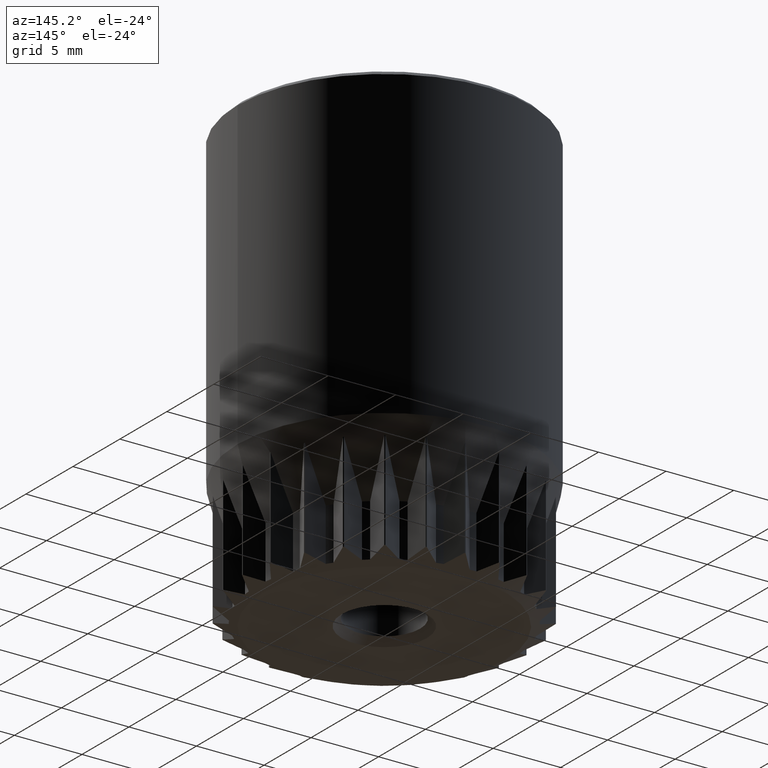
[diagram: clean part render]
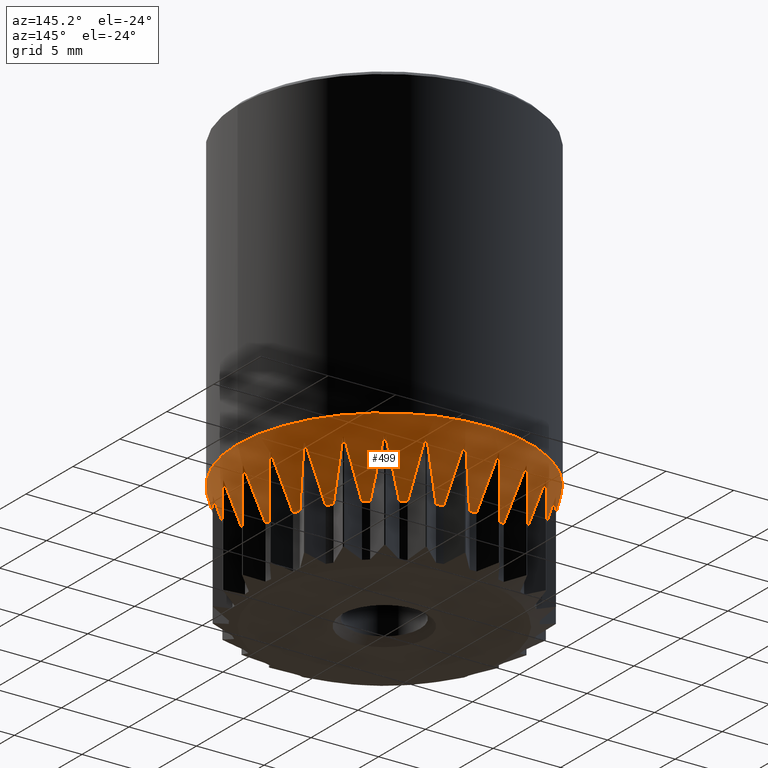
[diagram: same view with one face highlighted and labeled with its STEP entity id]
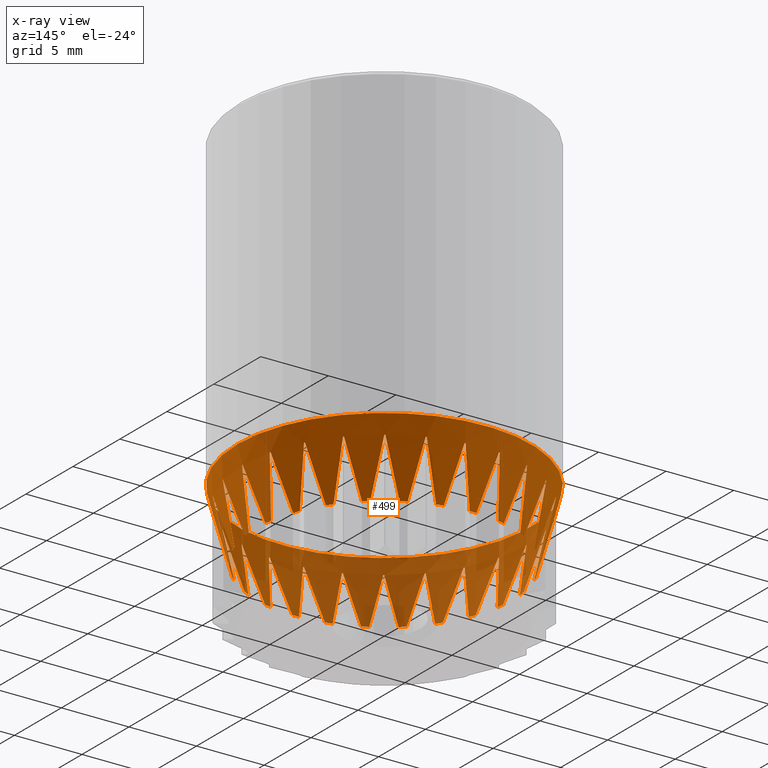
[diagram: x-ray of the same camera — body ghosted, the highlighted face saturated]
A machine part, auxiliary view. The second image highlights one B-rep face of the part: STEP entity #499.
The next image is the same camera in x-ray: the body ghosted, the highlighted face saturated — about 40% of this face is hidden behind the body in this view.
In plain terms, the highlighted conical surface has half-angle 15 deg.
Its self-contained STEP definition (entity closure, byte-faithful):
#97=CONICAL_SURFACE('',#2295,11.0431851652578,15.);
#102=B_SPLINE_CURVE_WITH_KNOTS('',3,(#3221,#3222,#3223,#3224),.UNSPECIFIED.,
.F.,.F.,(4,4),(0.,1.),.UNSPECIFIED.);
#103=B_SPLINE_CURVE_WITH_KNOTS('',3,(#3226,#3227,#3228,#3229),.UNSPECIFIED.,
.F.,.F.,(4,4),(0.,1.),.UNSPECIFIED.);
#104=B_SPLINE_CURVE_WITH_KNOTS('',3,(#3233,#3234,#3235,#3236),.UNSPECIFIED.,
.F.,.F.,(4,4),(0.,1.),.UNSPECIFIED.);
#105=B_SPLINE_CURVE_WITH_KNOTS('',3,(#3237,#3238,#3239,#3240),.UNSPECIFIED.,
.F.,.F.,(4,4),(0.,1.),.UNSPECIFIED.);
#106=B_SPLINE_CURVE_WITH_KNOTS('',3,(#3244,#3245,#3246,#3247),.UNSPECIFIED.,
.F.,.F.,(4,4),(0.,1.),.UNSPECIFIED.);
#107=B_SPLINE_CURVE_WITH_KNOTS('',3,(#3248,#3249,#3250,#3251),.UNSPECIFIED.,
.F.,.F.,(4,4),(0.,1.),.UNSPECIFIED.);
#108=B_SPLINE_CURVE_WITH_KNOTS('',3,(#3255,#3256,#3257,#3258),.UNSPECIFIED.,
.F.,.F.,(4,4),(0.,1.),.UNSPECIFIED.);
#109=B_SPLINE_CURVE_WITH_KNOTS('',3,(#3259,#3260,#3261,#3262),.UNSPECIFIED.,
.F.,.F.,(4,4),(0.,1.),.UNSPECIFIED.);
#110=B_SPLINE_CURVE_WITH_KNOTS('',3,(#3266,#3267,#3268,#3269),.UNSPECIFIED.,
.F.,.F.,(4,4),(0.,1.),.UNSPECIFIED.);
#111=B_SPLINE_CURVE_WITH_KNOTS('',3,(#3270,#3271,#3272,#3273),.UNSPECIFIED.,
.F.,.F.,(4,4),(0.,1.),.UNSPECIFIED.);
#112=B_SPLINE_CURVE_WITH_KNOTS('',3,(#3277,#3278,#3279,#3280),.UNSPECIFIED.,
.F.,.F.,(4,4),(0.,1.),.UNSPECIFIED.);
#113=B_SPLINE_CURVE_WITH_KNOTS('',3,(#3281,#3282,#3283,#3284),.UNSPECIFIED.,
.F.,.F.,(4,4),(0.,1.),.UNSPECIFIED.);
#114=B_SPLINE_CURVE_WITH_KNOTS('',3,(#3288,#3289,#3290,#3291),.UNSPECIFIED.,
.F.,.F.,(4,4),(0.,1.),.UNSPECIFIED.);
#115=B_SPLINE_CURVE_WITH_KNOTS('',3,(#3292,#3293,#3294,#3295),.UNSPECIFIED.,
.F.,.F.,(4,4),(0.,1.),.UNSPECIFIED.);
#116=B_SPLINE_CURVE_WITH_KNOTS('',3,(#3299,#3300,#3301,#3302),.UNSPECIFIED.,
.F.,.F.,(4,4),(0.,1.),.UNSPECIFIED.);
#117=B_SPLINE_CURVE_WITH_KNOTS('',3,(#3303,#3304,#3305,#3306),.UNSPECIFIED.,
.F.,.F.,(4,4),(0.,1.),.UNSPECIFIED.);
#118=B_SPLINE_CURVE_WITH_KNOTS('',3,(#3310,#3311,#3312,#3313),.UNSPECIFIED.,
.F.,.F.,(4,4),(0.,1.),.UNSPECIFIED.);
#119=B_SPLINE_CURVE_WITH_KNOTS('',3,(#3314,#3315,#3316,#3317),.UNSPECIFIED.,
.F.,.F.,(4,4),(0.,1.),.UNSPECIFIED.);
#120=B_SPLINE_CURVE_WITH_KNOTS('',3,(#3321,#3322,#3323,#3324),.UNSPECIFIED.,
.F.,.F.,(4,4),(0.,1.),.UNSPECIFIED.);
#121=B_SPLINE_CURVE_WITH_KNOTS('',3,(#3325,#3326,#3327,#3328),.UNSPECIFIED.,
.F.,.F.,(4,4),(0.,1.),.UNSPECIFIED.);
#122=B_SPLINE_CURVE_WITH_KNOTS('',3,(#3332,#3333,#3334,#3335),.UNSPECIFIED.,
.F.,.F.,(4,4),(0.,1.),.UNSPECIFIED.);
#123=B_SPLINE_CURVE_WITH_KNOTS('',3,(#3336,#3337,#3338,#3339),.UNSPECIFIED.,
.F.,.F.,(4,4),(0.,1.),.UNSPECIFIED.);
#124=B_SPLINE_CURVE_WITH_KNOTS('',3,(#3343,#3344,#3345,#3346),.UNSPECIFIED.,
.F.,.F.,(4,4),(0.,1.),.UNSPECIFIED.);
#125=B_SPLINE_CURVE_WITH_KNOTS('',3,(#3347,#3348,#3349,#3350),.UNSPECIFIED.,
.F.,.F.,(4,4),(0.,1.),.UNSPECIFIED.);
#126=B_SPLINE_CURVE_WITH_KNOTS('',3,(#3354,#3355,#3356,#3357),.UNSPECIFIED.,
.F.,.F.,(4,4),(0.,1.),.UNSPECIFIED.);
#127=B_SPLINE_CURVE_WITH_KNOTS('',3,(#3358,#3359,#3360,#3361),.UNSPECIFIED.,
.F.,.F.,(4,4),(0.,1.),.UNSPECIFIED.);
#128=B_SPLINE_CURVE_WITH_KNOTS('',3,(#3365,#3366,#3367,#3368),.UNSPECIFIED.,
.F.,.F.,(4,4),(0.,1.),.UNSPECIFIED.);
#129=B_SPLINE_CURVE_WITH_KNOTS('',3,(#3369,#3370,#3371,#3372),.UNSPECIFIED.,
.F.,.F.,(4,4),(0.,1.),.UNSPECIFIED.);
#130=B_SPLINE_CURVE_WITH_KNOTS('',3,(#3376,#3377,#3378,#3379),.UNSPECIFIED.,
.F.,.F.,(4,4),(0.,1.),.UNSPECIFIED.);
#131=B_SPLINE_CURVE_WITH_KNOTS('',3,(#3380,#3381,#3382,#3383),.UNSPECIFIED.,
.F.,.F.,(4,4),(0.,1.),.UNSPECIFIED.);
#132=B_SPLINE_CURVE_WITH_KNOTS('',3,(#3387,#3388,#3389,#3390),.UNSPECIFIED.,
.F.,.F.,(4,4),(0.,1.),.UNSPECIFIED.);
#133=B_SPLINE_CURVE_WITH_KNOTS('',3,(#3391,#3392,#3393,#3394),.UNSPECIFIED.,
.F.,.F.,(4,4),(0.,1.),.UNSPECIFIED.);
#134=B_SPLINE_CURVE_WITH_KNOTS('',3,(#3398,#3399,#3400,#3401),.UNSPECIFIED.,
.F.,.F.,(4,4),(0.,1.),.UNSPECIFIED.);
#135=B_SPLINE_CURVE_WITH_KNOTS('',3,(#3402,#3403,#3404,#3405),.UNSPECIFIED.,
.F.,.F.,(4,4),(0.,1.),.UNSPECIFIED.);
#136=B_SPLINE_CURVE_WITH_KNOTS('',3,(#3409,#3410,#3411,#3412),.UNSPECIFIED.,
.F.,.F.,(4,4),(0.,1.),.UNSPECIFIED.);
#137=B_SPLINE_CURVE_WITH_KNOTS('',3,(#3413,#3414,#3415,#3416),.UNSPECIFIED.,
.F.,.F.,(4,4),(0.,1.),.UNSPECIFIED.);
#138=B_SPLINE_CURVE_WITH_KNOTS('',3,(#3420,#3421,#3422,#3423),.UNSPECIFIED.,
.F.,.F.,(4,4),(0.,1.),.UNSPECIFIED.);
#139=B_SPLINE_CURVE_WITH_KNOTS('',3,(#3424,#3425,#3426,#3427),.UNSPECIFIED.,
.F.,.F.,(4,4),(0.,1.),.UNSPECIFIED.);
#140=B_SPLINE_CURVE_WITH_KNOTS('',3,(#3431,#3432,#3433,#3434),.UNSPECIFIED.,
.F.,.F.,(4,4),(0.,1.),.UNSPECIFIED.);
#141=B_SPLINE_CURVE_WITH_KNOTS('',3,(#3435,#3436,#3437,#3438),.UNSPECIFIED.,
.F.,.F.,(4,4),(0.,1.),.UNSPECIFIED.);
#142=B_SPLINE_CURVE_WITH_KNOTS('',3,(#3442,#3443,#3444,#3445),.UNSPECIFIED.,
.F.,.F.,(4,4),(0.,1.),.UNSPECIFIED.);
#143=B_SPLINE_CURVE_WITH_KNOTS('',3,(#3446,#3447,#3448,#3449),.UNSPECIFIED.,
.F.,.F.,(4,4),(0.,1.),.UNSPECIFIED.);
#144=B_SPLINE_CURVE_WITH_KNOTS('',3,(#3453,#3454,#3455,#3456),.UNSPECIFIED.,
.F.,.F.,(4,4),(0.,1.),.UNSPECIFIED.);
#145=B_SPLINE_CURVE_WITH_KNOTS('',3,(#3457,#3458,#3459,#3460),.UNSPECIFIED.,
.F.,.F.,(4,4),(0.,1.),.UNSPECIFIED.);
#146=B_SPLINE_CURVE_WITH_KNOTS('',3,(#3464,#3465,#3466,#3467),.UNSPECIFIED.,
.F.,.F.,(4,4),(0.,1.),.UNSPECIFIED.);
#147=B_SPLINE_CURVE_WITH_KNOTS('',3,(#3468,#3469,#3470,#3471),.UNSPECIFIED.,
.F.,.F.,(4,4),(0.,1.),.UNSPECIFIED.);
#148=B_SPLINE_CURVE_WITH_KNOTS('',3,(#3475,#3476,#3477,#3478),.UNSPECIFIED.,
.F.,.F.,(4,4),(0.,1.),.UNSPECIFIED.);
#149=B_SPLINE_CURVE_WITH_KNOTS('',3,(#3479,#3480,#3481,#3482),.UNSPECIFIED.,
.F.,.F.,(4,4),(0.,1.),.UNSPECIFIED.);
#150=B_SPLINE_CURVE_WITH_KNOTS('',3,(#3486,#3487,#3488,#3489),.UNSPECIFIED.,
.F.,.F.,(4,4),(0.,1.),.UNSPECIFIED.);
#151=B_SPLINE_CURVE_WITH_KNOTS('',3,(#3490,#3491,#3492,#3493),.UNSPECIFIED.,
.F.,.F.,(4,4),(0.,1.),.UNSPECIFIED.);
#152=B_SPLINE_CURVE_WITH_KNOTS('',3,(#3497,#3498,#3499,#3500),.UNSPECIFIED.,
.F.,.F.,(4,4),(0.,1.),.UNSPECIFIED.);
#153=B_SPLINE_CURVE_WITH_KNOTS('',3,(#3501,#3502,#3503,#3504),.UNSPECIFIED.,
.F.,.F.,(4,4),(0.,1.),.UNSPECIFIED.);
#499=ADVANCED_FACE('',(#643,#678),#97,.T.);
#643=FACE_BOUND('',#795,.T.);
#678=FACE_OUTER_BOUND('',#796,.T.);
#795=EDGE_LOOP('',(#997,#998,#999,#1000,#1001,#1002,#1003,#1004,#1005,#1006,
#1007,#1008,#1009,#1010,#1011,#1012,#1013,#1014,#1015,#1016,#1017,#1018,
#1019,#1020,#1021,#1022,#1023,#1024,#1025,#1026,#1027,#1028,#1029,#1030,
#1031,#1032,#1033,#1034,#1035,#1036,#1037,#1038,#1039,#1040,#1041,#1042,
#1043,#1044,#1045,#1046,#1047,#1048,#1049,#1050,#1051,#1052,#1053,#1054,
#1055,#1056,#1057,#1058,#1059,#1060,#1061,#1062,#1063,#1064,#1065,#1066,
#1067,#1068,#1069,#1070,#1071,#1072,#1073,#1074,#1075,#1076,#1077,#1078,
#1079,#1080,#1081,#1082,#1083,#1084,#1085,#1086,#1087,#1088,#1089,#1090,
#1091,#1092,#1093,#1094,#1095,#1096,#1097,#1098,#1099,#1100));
#796=EDGE_LOOP('',(#1101));
#997=ORIENTED_EDGE('',*,*,#1856,.F.);
#998=ORIENTED_EDGE('',*,*,#1751,.F.);
#999=ORIENTED_EDGE('',*,*,#1857,.F.);
#1000=ORIENTED_EDGE('',*,*,#1858,.F.);
#1001=ORIENTED_EDGE('',*,*,#1859,.F.);
#1002=ORIENTED_EDGE('',*,*,#1755,.F.);
#1003=ORIENTED_EDGE('',*,*,#1860,.F.);
#1004=ORIENTED_EDGE('',*,*,#1861,.F.);
#1005=ORIENTED_EDGE('',*,*,#1862,.F.);
#1006=ORIENTED_EDGE('',*,*,#1831,.F.);
#1007=ORIENTED_EDGE('',*,*,#1863,.F.);
#1008=ORIENTED_EDGE('',*,*,#1864,.F.);
#1009=ORIENTED_EDGE('',*,*,#1865,.F.);
#1010=ORIENTED_EDGE('',*,*,#1847,.F.);
#1011=ORIENTED_EDGE('',*,*,#1866,.F.);
#1012=ORIENTED_EDGE('',*,*,#1867,.F.);
#1013=ORIENTED_EDGE('',*,*,#1868,.F.);
#1014=ORIENTED_EDGE('',*,*,#1795,.F.);
#1015=ORIENTED_EDGE('',*,*,#1869,.F.);
#1016=ORIENTED_EDGE('',*,*,#1870,.F.);
#1017=ORIENTED_EDGE('',*,*,#1871,.F.);
#1018=ORIENTED_EDGE('',*,*,#1811,.F.);
#1019=ORIENTED_EDGE('',*,*,#1872,.F.);
#1020=ORIENTED_EDGE('',*,*,#1873,.F.);
#1021=ORIENTED_EDGE('',*,*,#1874,.F.);
#1022=ORIENTED_EDGE('',*,*,#1775,.F.);
#1023=ORIENTED_EDGE('',*,*,#1875,.F.);
#1024=ORIENTED_EDGE('',*,*,#1876,.F.);
#1025=ORIENTED_EDGE('',*,*,#1877,.F.);
#1026=ORIENTED_EDGE('',*,*,#1853,.F.);
#1027=ORIENTED_EDGE('',*,*,#1878,.F.);
#1028=ORIENTED_EDGE('',*,*,#1879,.F.);
#1029=ORIENTED_EDGE('',*,*,#1880,.F.);
#1030=ORIENTED_EDGE('',*,*,#1843,.F.);
#1031=ORIENTED_EDGE('',*,*,#1881,.F.);
#1032=ORIENTED_EDGE('',*,*,#1882,.F.);
#1033=ORIENTED_EDGE('',*,*,#1883,.F.);
#1034=ORIENTED_EDGE('',*,*,#1767,.F.);
#1035=ORIENTED_EDGE('',*,*,#1884,.F.);
#1036=ORIENTED_EDGE('',*,*,#1885,.F.);
#1037=ORIENTED_EDGE('',*,*,#1886,.F.);
#1038=ORIENTED_EDGE('',*,*,#1771,.F.);
#1039=ORIENTED_EDGE('',*,*,#1887,.F.);
#1040=ORIENTED_EDGE('',*,*,#1888,.F.);
#1041=ORIENTED_EDGE('',*,*,#1889,.F.);
#1042=ORIENTED_EDGE('',*,*,#1803,.F.);
#1043=ORIENTED_EDGE('',*,*,#1890,.F.);
#1044=ORIENTED_EDGE('',*,*,#1891,.F.);
#1045=ORIENTED_EDGE('',*,*,#1892,.F.);
#1046=ORIENTED_EDGE('',*,*,#1839,.F.);
#1047=ORIENTED_EDGE('',*,*,#1893,.F.);
#1048=ORIENTED_EDGE('',*,*,#1894,.F.);
#1049=ORIENTED_EDGE('',*,*,#1895,.F.);
#1050=ORIENTED_EDGE('',*,*,#1779,.F.);
#1051=ORIENTED_EDGE('',*,*,#1896,.F.);
#1052=ORIENTED_EDGE('',*,*,#1897,.F.);
#1053=ORIENTED_EDGE('',*,*,#1898,.F.);
#1054=ORIENTED_EDGE('',*,*,#1807,.F.);
#1055=ORIENTED_EDGE('',*,*,#1899,.F.);
#1056=ORIENTED_EDGE('',*,*,#1900,.F.);
#1057=ORIENTED_EDGE('',*,*,#1901,.F.);
#1058=ORIENTED_EDGE('',*,*,#1783,.F.);
#1059=ORIENTED_EDGE('',*,*,#1902,.F.);
#1060=ORIENTED_EDGE('',*,*,#1903,.F.);
#1061=ORIENTED_EDGE('',*,*,#1904,.F.);
#1062=ORIENTED_EDGE('',*,*,#1827,.F.);
#1063=ORIENTED_EDGE('',*,*,#1905,.F.);
#1064=ORIENTED_EDGE('',*,*,#1906,.F.);
#1065=ORIENTED_EDGE('',*,*,#1907,.F.);
#1066=ORIENTED_EDGE('',*,*,#1819,.F.);
#1067=ORIENTED_EDGE('',*,*,#1908,.F.);
#1068=ORIENTED_EDGE('',*,*,#1909,.F.);
#1069=ORIENTED_EDGE('',*,*,#1910,.F.);
#1070=ORIENTED_EDGE('',*,*,#1815,.F.);
#1071=ORIENTED_EDGE('',*,*,#1911,.F.);
#1072=ORIENTED_EDGE('',*,*,#1912,.F.);
#1073=ORIENTED_EDGE('',*,*,#1913,.F.);
#1074=ORIENTED_EDGE('',*,*,#1791,.F.);
#1075=ORIENTED_EDGE('',*,*,#1914,.F.);
#1076=ORIENTED_EDGE('',*,*,#1915,.F.);
#1077=ORIENTED_EDGE('',*,*,#1916,.F.);
#1078=ORIENTED_EDGE('',*,*,#1823,.F.);
#1079=ORIENTED_EDGE('',*,*,#1917,.F.);
#1080=ORIENTED_EDGE('',*,*,#1918,.F.);
#1081=ORIENTED_EDGE('',*,*,#1919,.F.);
#1082=ORIENTED_EDGE('',*,*,#1835,.F.);
#1083=ORIENTED_EDGE('',*,*,#1920,.F.);
#1084=ORIENTED_EDGE('',*,*,#1921,.F.);
#1085=ORIENTED_EDGE('',*,*,#1922,.F.);
#1086=ORIENTED_EDGE('',*,*,#1787,.F.);
#1087=ORIENTED_EDGE('',*,*,#1923,.F.);
#1088=ORIENTED_EDGE('',*,*,#1924,.F.);
#1089=ORIENTED_EDGE('',*,*,#1925,.F.);
#1090=ORIENTED_EDGE('',*,*,#1799,.F.);
#1091=ORIENTED_EDGE('',*,*,#1926,.F.);
#1092=ORIENTED_EDGE('',*,*,#1927,.F.);
#1093=ORIENTED_EDGE('',*,*,#1928,.F.);
#1094=ORIENTED_EDGE('',*,*,#1759,.F.);
#1095=ORIENTED_EDGE('',*,*,#1929,.F.);
#1096=ORIENTED_EDGE('',*,*,#1930,.F.);
#1097=ORIENTED_EDGE('',*,*,#1931,.F.);
#1098=ORIENTED_EDGE('',*,*,#1763,.F.);
#1099=ORIENTED_EDGE('',*,*,#1932,.F.);
#1100=ORIENTED_EDGE('',*,*,#1933,.F.);
#1101=ORIENTED_EDGE('',*,*,#1849,.F.);
#1532=VERTEX_POINT('',#2979);
#1534=VERTEX_POINT('',#2983);
#1536=VERTEX_POINT('',#2988);
#1538=VERTEX_POINT('',#2992);
#1540=VERTEX_POINT('',#2997);
#1542=VERTEX_POINT('',#3001);
#1544=VERTEX_POINT('',#3006);
#1546=VERTEX_POINT('',#3010);
#1548=VERTEX_POINT('',#3015);
#1550=VERTEX_POINT('',#3019);
#1552=VERTEX_POINT('',#3024);
#1554=VERTEX_POINT('',#3028);
#1556=VERTEX_POINT('',#3033);
#1558=VERTEX_POINT('',#3037);
#1560=VERTEX_POINT('',#3042);
#1562=VERTEX_POINT('',#3046);
#1564=VERTEX_POINT('',#3051);
#1566=VERTEX_POINT('',#3055);
#1568=VERTEX_POINT('',#3060);
#1570=VERTEX_POINT('',#3064);
#1572=VERTEX_POINT('',#3069);
#1574=VERTEX_POINT('',#3073);
#1576=VERTEX_POINT('',#3078);
#1578=VERTEX_POINT('',#3082);
#1580=VERTEX_POINT('',#3087);
#1582=VERTEX_POINT('',#3091);
#1584=VERTEX_POINT('',#3096);
#1586=VERTEX_POINT('',#3100);
#1588=VERTEX_POINT('',#3105);
#1590=VERTEX_POINT('',#3109);
#1592=VERTEX_POINT('',#3114);
#1594=VERTEX_POINT('',#3118);
#1596=VERTEX_POINT('',#3123);
#1598=VERTEX_POINT('',#3127);
#1600=VERTEX_POINT('',#3132);
#1602=VERTEX_POINT('',#3136);
#1604=VERTEX_POINT('',#3141);
#1606=VERTEX_POINT('',#3145);
#1608=VERTEX_POINT('',#3150);
#1610=VERTEX_POINT('',#3154);
#1612=VERTEX_POINT('',#3159);
#1614=VERTEX_POINT('',#3163);
#1616=VERTEX_POINT('',#3168);
#1618=VERTEX_POINT('',#3172);
#1620=VERTEX_POINT('',#3177);
#1622=VERTEX_POINT('',#3181);
#1624=VERTEX_POINT('',#3186);
#1626=VERTEX_POINT('',#3190);
#1628=VERTEX_POINT('',#3195);
#1630=VERTEX_POINT('',#3199);
#1632=VERTEX_POINT('',#3205);
#1634=VERTEX_POINT('',#3209);
#1636=VERTEX_POINT('',#3213);
#1639=VERTEX_POINT('',#3225);
#1640=VERTEX_POINT('',#3230);
#1641=VERTEX_POINT('',#3232);
#1642=VERTEX_POINT('',#3241);
#1643=VERTEX_POINT('',#3243);
#1644=VERTEX_POINT('',#3252);
#1645=VERTEX_POINT('',#3254);
#1646=VERTEX_POINT('',#3263);
#1647=VERTEX_POINT('',#3265);
#1648=VERTEX_POINT('',#3274);
#1649=VERTEX_POINT('',#3276);
#1650=VERTEX_POINT('',#3285);
#1651=VERTEX_POINT('',#3287);
#1652=VERTEX_POINT('',#3296);
#1653=VERTEX_POINT('',#3298);
#1654=VERTEX_POINT('',#3307);
#1655=VERTEX_POINT('',#3309);
#1656=VERTEX_POINT('',#3318);
#1657=VERTEX_POINT('',#3320);
#1658=VERTEX_POINT('',#3329);
#1659=VERTEX_POINT('',#3331);
#1660=VERTEX_POINT('',#3340);
#1661=VERTEX_POINT('',#3342);
#1662=VERTEX_POINT('',#3351);
#1663=VERTEX_POINT('',#3353);
#1664=VERTEX_POINT('',#3362);
#1665=VERTEX_POINT('',#3364);
#1666=VERTEX_POINT('',#3373);
#1667=VERTEX_POINT('',#3375);
#1668=VERTEX_POINT('',#3384);
#1669=VERTEX_POINT('',#3386);
#1670=VERTEX_POINT('',#3395);
#1671=VERTEX_POINT('',#3397);
#1672=VERTEX_POINT('',#3406);
#1673=VERTEX_POINT('',#3408);
#1674=VERTEX_POINT('',#3417);
#1675=VERTEX_POINT('',#3419);
#1676=VERTEX_POINT('',#3428);
#1677=VERTEX_POINT('',#3430);
#1678=VERTEX_POINT('',#3439);
#1679=VERTEX_POINT('',#3441);
#1680=VERTEX_POINT('',#3450);
#1681=VERTEX_POINT('',#3452);
#1682=VERTEX_POINT('',#3461);
#1683=VERTEX_POINT('',#3463);
#1684=VERTEX_POINT('',#3472);
#1685=VERTEX_POINT('',#3474);
#1686=VERTEX_POINT('',#3483);
#1687=VERTEX_POINT('',#3485);
#1688=VERTEX_POINT('',#3494);
#1689=VERTEX_POINT('',#3496);
#1690=VERTEX_POINT('',#3505);
#1751=EDGE_CURVE('',#1534,#1532,#2070,.T.);
#1755=EDGE_CURVE('',#1538,#1536,#2072,.T.);
#1759=EDGE_CURVE('',#1542,#1540,#2074,.T.);
#1763=EDGE_CURVE('',#1546,#1544,#2076,.T.);
#1767=EDGE_CURVE('',#1550,#1548,#2078,.T.);
#1771=EDGE_CURVE('',#1554,#1552,#2080,.T.);
#1775=EDGE_CURVE('',#1558,#1556,#2082,.T.);
#1779=EDGE_CURVE('',#1562,#1560,#2084,.T.);
#1783=EDGE_CURVE('',#1566,#1564,#2086,.T.);
#1787=EDGE_CURVE('',#1570,#1568,#2088,.T.);
#1791=EDGE_CURVE('',#1574,#1572,#2090,.T.);
#1795=EDGE_CURVE('',#1578,#1576,#2092,.T.);
#1799=EDGE_CURVE('',#1582,#1580,#2094,.T.);
#1803=EDGE_CURVE('',#1586,#1584,#2096,.T.);
#1807=EDGE_CURVE('',#1590,#1588,#2098,.T.);
#1811=EDGE_CURVE('',#1594,#1592,#2100,.T.);
#1815=EDGE_CURVE('',#1598,#1596,#2102,.T.);
#1819=EDGE_CURVE('',#1602,#1600,#2104,.T.);
#1823=EDGE_CURVE('',#1606,#1604,#2106,.T.);
#1827=EDGE_CURVE('',#1610,#1608,#2108,.T.);
#1831=EDGE_CURVE('',#1614,#1612,#2110,.T.);
#1835=EDGE_CURVE('',#1618,#1616,#2112,.T.);
#1839=EDGE_CURVE('',#1622,#1620,#2114,.T.);
#1843=EDGE_CURVE('',#1626,#1624,#2116,.T.);
#1847=EDGE_CURVE('',#1630,#1628,#2118,.T.);
#1849=EDGE_CURVE('',#1632,#1632,#2120,.T.);
#1853=EDGE_CURVE('',#1636,#1634,#2122,.T.);
#1856=EDGE_CURVE('',#1532,#1639,#102,.T.);
#1857=EDGE_CURVE('',#1640,#1534,#103,.T.);
#1858=EDGE_CURVE('',#1641,#1640,#2125,.T.);
#1859=EDGE_CURVE('',#1536,#1641,#104,.T.);
#1860=EDGE_CURVE('',#1642,#1538,#105,.T.);
#1861=EDGE_CURVE('',#1643,#1642,#2126,.T.);
#1862=EDGE_CURVE('',#1612,#1643,#106,.T.);
#1863=EDGE_CURVE('',#1644,#1614,#107,.T.);
#1864=EDGE_CURVE('',#1645,#1644,#2127,.T.);
#1865=EDGE_CURVE('',#1628,#1645,#108,.T.);
#1866=EDGE_CURVE('',#1646,#1630,#109,.T.);
#1867=EDGE_CURVE('',#1647,#1646,#2128,.T.);
#1868=EDGE_CURVE('',#1576,#1647,#110,.T.);
#1869=EDGE_CURVE('',#1648,#1578,#111,.T.);
#1870=EDGE_CURVE('',#1649,#1648,#2129,.T.);
#1871=EDGE_CURVE('',#1592,#1649,#112,.T.);
#1872=EDGE_CURVE('',#1650,#1594,#113,.T.);
#1873=EDGE_CURVE('',#1651,#1650,#2130,.T.);
#1874=EDGE_CURVE('',#1556,#1651,#114,.T.);
#1875=EDGE_CURVE('',#1652,#1558,#115,.T.);
#1876=EDGE_CURVE('',#1653,#1652,#2131,.T.);
#1877=EDGE_CURVE('',#1634,#1653,#116,.T.);
#1878=EDGE_CURVE('',#1654,#1636,#117,.T.);
#1879=EDGE_CURVE('',#1655,#1654,#2132,.T.);
#1880=EDGE_CURVE('',#1624,#1655,#118,.T.);
#1881=EDGE_CURVE('',#1656,#1626,#119,.T.);
#1882=EDGE_CURVE('',#1657,#1656,#2133,.T.);
#1883=EDGE_CURVE('',#1548,#1657,#120,.T.);
#1884=EDGE_CURVE('',#1658,#1550,#121,.T.);
#1885=EDGE_CURVE('',#1659,#1658,#2134,.T.);
#1886=EDGE_CURVE('',#1552,#1659,#122,.T.);
#1887=EDGE_CURVE('',#1660,#1554,#123,.T.);
#1888=EDGE_CURVE('',#1661,#1660,#2135,.T.);
#1889=EDGE_CURVE('',#1584,#1661,#124,.T.);
#1890=EDGE_CURVE('',#1662,#1586,#125,.T.);
#1891=EDGE_CURVE('',#1663,#1662,#2136,.T.);
#1892=EDGE_CURVE('',#1620,#1663,#126,.T.);
#1893=EDGE_CURVE('',#1664,#1622,#127,.T.);
#1894=EDGE_CURVE('',#1665,#1664,#2137,.T.);
#1895=EDGE_CURVE('',#1560,#1665,#128,.T.);
#1896=EDGE_CURVE('',#1666,#1562,#129,.T.);
#1897=EDGE_CURVE('',#1667,#1666,#2138,.T.);
#1898=EDGE_CURVE('',#1588,#1667,#130,.T.);
#1899=EDGE_CURVE('',#1668,#1590,#131,.T.);
#1900=EDGE_CURVE('',#1669,#1668,#2139,.T.);
#1901=EDGE_CURVE('',#1564,#1669,#132,.T.);
#1902=EDGE_CURVE('',#1670,#1566,#133,.T.);
#1903=EDGE_CURVE('',#1671,#1670,#2140,.T.);
#1904=EDGE_CURVE('',#1608,#1671,#134,.T.);
#1905=EDGE_CURVE('',#1672,#1610,#135,.T.);
#1906=EDGE_CURVE('',#1673,#1672,#2141,.T.);
#1907=EDGE_CURVE('',#1600,#1673,#136,.T.);
#1908=EDGE_CURVE('',#1674,#1602,#137,.T.);
#1909=EDGE_CURVE('',#1675,#1674,#2142,.T.);
#1910=EDGE_CURVE('',#1596,#1675,#138,.T.);
#1911=EDGE_CURVE('',#1676,#1598,#139,.T.);
#1912=EDGE_CURVE('',#1677,#1676,#2143,.T.);
#1913=EDGE_CURVE('',#1572,#1677,#140,.T.);
#1914=EDGE_CURVE('',#1678,#1574,#141,.T.);
#1915=EDGE_CURVE('',#1679,#1678,#2144,.T.);
#1916=EDGE_CURVE('',#1604,#1679,#142,.T.);
#1917=EDGE_CURVE('',#1680,#1606,#143,.T.);
#1918=EDGE_CURVE('',#1681,#1680,#2145,.T.);
#1919=EDGE_CURVE('',#1616,#1681,#144,.T.);
#1920=EDGE_CURVE('',#1682,#1618,#145,.T.);
#1921=EDGE_CURVE('',#1683,#1682,#2146,.T.);
#1922=EDGE_CURVE('',#1568,#1683,#146,.T.);
#1923=EDGE_CURVE('',#1684,#1570,#147,.T.);
#1924=EDGE_CURVE('',#1685,#1684,#2147,.T.);
#1925=EDGE_CURVE('',#1580,#1685,#148,.T.);
#1926=EDGE_CURVE('',#1686,#1582,#149,.T.);
#1927=EDGE_CURVE('',#1687,#1686,#2148,.T.);
#1928=EDGE_CURVE('',#1540,#1687,#150,.T.);
#1929=EDGE_CURVE('',#1688,#1542,#151,.T.);
#1930=EDGE_CURVE('',#1689,#1688,#2149,.T.);
#1931=EDGE_CURVE('',#1544,#1689,#152,.T.);
#1932=EDGE_CURVE('',#1690,#1546,#153,.T.);
#1933=EDGE_CURVE('',#1639,#1690,#2150,.T.);
#2070=CIRCLE('',#2186,9.45);
#2072=CIRCLE('',#2189,9.45);
#2074=CIRCLE('',#2192,9.45);
#2076=CIRCLE('',#2195,9.45);
#2078=CIRCLE('',#2198,9.45);
#2080=CIRCLE('',#2201,9.45);
#2082=CIRCLE('',#2204,9.45);
#2084=CIRCLE('',#2207,9.45);
#2086=CIRCLE('',#2210,9.45);
#2088=CIRCLE('',#2213,9.45);
#2090=CIRCLE('',#2216,9.45);
#2092=CIRCLE('',#2219,9.45);
#2094=CIRCLE('',#2222,9.45);
#2096=CIRCLE('',#2225,9.45);
#2098=CIRCLE('',#2228,9.45);
#2100=CIRCLE('',#2231,9.45);
#2102=CIRCLE('',#2234,9.45);
#2104=CIRCLE('',#2237,9.45);
#2106=CIRCLE('',#2240,9.45);
#2108=CIRCLE('',#2243,9.45);
#2110=CIRCLE('',#2246,9.45);
#2112=CIRCLE('',#2249,9.45);
#2114=CIRCLE('',#2252,9.45);
#2116=CIRCLE('',#2255,9.45);
#2118=CIRCLE('',#2258,9.45);
#2120=CIRCLE('',#2261,10.85);
#2122=CIRCLE('',#2264,9.45);
#2125=CIRCLE('',#2269,10.5);
#2126=CIRCLE('',#2270,10.5);
#2127=CIRCLE('',#2271,10.5);
#2128=CIRCLE('',#2272,10.5);
#2129=CIRCLE('',#2273,10.5);
#2130=CIRCLE('',#2274,10.5);
#2131=CIRCLE('',#2275,10.5);
#2132=CIRCLE('',#2276,10.5);
#2133=CIRCLE('',#2277,10.5);
#2134=CIRCLE('',#2278,10.5);
#2135=CIRCLE('',#2279,10.5);
#2136=CIRCLE('',#2280,10.5);
#2137=CIRCLE('',#2281,10.5);
#2138=CIRCLE('',#2282,10.5);
#2139=CIRCLE('',#2283,10.5);
#2140=CIRCLE('',#2284,10.5);
#2141=CIRCLE('',#2285,10.5);
#2142=CIRCLE('',#2286,10.5);
#2143=CIRCLE('',#2287,10.5);
#2144=CIRCLE('',#2288,10.5);
#2145=CIRCLE('',#2289,10.5);
#2146=CIRCLE('',#2290,10.5);
#2147=CIRCLE('',#2291,10.5);
#2148=CIRCLE('',#2292,10.5);
#2149=CIRCLE('',#2293,10.5);
#2150=CIRCLE('',#2294,10.5);
#2186=AXIS2_PLACEMENT_3D('',#2984,#2424,#2425);
#2189=AXIS2_PLACEMENT_3D('',#2993,#2432,#2433);
#2192=AXIS2_PLACEMENT_3D('',#3002,#2440,#2441);
#2195=AXIS2_PLACEMENT_3D('',#3011,#2448,#2449);
#2198=AXIS2_PLACEMENT_3D('',#3020,#2456,#2457);
#2201=AXIS2_PLACEMENT_3D('',#3029,#2464,#2465);
#2204=AXIS2_PLACEMENT_3D('',#3038,#2472,#2473);
#2207=AXIS2_PLACEMENT_3D('',#3047,#2480,#2481);
#2210=AXIS2_PLACEMENT_3D('',#3056,#2488,#2489);
#2213=AXIS2_PLACEMENT_3D('',#3065,#2496,#2497);
#2216=AXIS2_PLACEMENT_3D('',#3074,#2504,#2505);
#2219=AXIS2_PLACEMENT_3D('',#3083,#2512,#2513);
#2222=AXIS2_PLACEMENT_3D('',#3092,#2520,#2521);
#2225=AXIS2_PLACEMENT_3D('',#3101,#2528,#2529);
#2228=AXIS2_PLACEMENT_3D('',#3110,#2536,#2537);
#2231=AXIS2_PLACEMENT_3D('',#3119,#2544,#2545);
#2234=AXIS2_PLACEMENT_3D('',#3128,#2552,#2553);
#2237=AXIS2_PLACEMENT_3D('',#3137,#2560,#2561);
#2240=AXIS2_PLACEMENT_3D('',#3146,#2568,#2569);
#2243=AXIS2_PLACEMENT_3D('',#3155,#2576,#2577);
#2246=AXIS2_PLACEMENT_3D('',#3164,#2584,#2585);
#2249=AXIS2_PLACEMENT_3D('',#3173,#2592,#2593);
#2252=AXIS2_PLACEMENT_3D('',#3182,#2600,#2601);
#2255=AXIS2_PLACEMENT_3D('',#3191,#2608,#2609);
#2258=AXIS2_PLACEMENT_3D('',#3200,#2616,#2617);
#2261=AXIS2_PLACEMENT_3D('',#3204,#2622,#2623);
#2264=AXIS2_PLACEMENT_3D('',#3214,#2630,#2631);
#2269=AXIS2_PLACEMENT_3D('',#3231,#2640,#2641);
#2270=AXIS2_PLACEMENT_3D('',#3242,#2642,#2643);
#2271=AXIS2_PLACEMENT_3D('',#3253,#2644,#2645);
#2272=AXIS2_PLACEMENT_3D('',#3264,#2646,#2647);
#2273=AXIS2_PLACEMENT_3D('',#3275,#2648,#2649);
#2274=AXIS2_PLACEMENT_3D('',#3286,#2650,#2651);
#2275=AXIS2_PLACEMENT_3D('',#3297,#2652,#2653);
#2276=AXIS2_PLACEMENT_3D('',#3308,#2654,#2655);
#2277=AXIS2_PLACEMENT_3D('',#3319,#2656,#2657);
#2278=AXIS2_PLACEMENT_3D('',#3330,#2658,#2659);
#2279=AXIS2_PLACEMENT_3D('',#3341,#2660,#2661);
#2280=AXIS2_PLACEMENT_3D('',#3352,#2662,#2663);
#2281=AXIS2_PLACEMENT_3D('',#3363,#2664,#2665);
#2282=AXIS2_PLACEMENT_3D('',#3374,#2666,#2667);
#2283=AXIS2_PLACEMENT_3D('',#3385,#2668,#2669);
#2284=AXIS2_PLACEMENT_3D('',#3396,#2670,#2671);
#2285=AXIS2_PLACEMENT_3D('',#3407,#2672,#2673);
#2286=AXIS2_PLACEMENT_3D('',#3418,#2674,#2675);
#2287=AXIS2_PLACEMENT_3D('',#3429,#2676,#2677);
#2288=AXIS2_PLACEMENT_3D('',#3440,#2678,#2679);
#2289=AXIS2_PLACEMENT_3D('',#3451,#2680,#2681);
#2290=AXIS2_PLACEMENT_3D('',#3462,#2682,#2683);
#2291=AXIS2_PLACEMENT_3D('',#3473,#2684,#2685);
#2292=AXIS2_PLACEMENT_3D('',#3484,#2686,#2687);
#2293=AXIS2_PLACEMENT_3D('',#3495,#2688,#2689);
#2294=AXIS2_PLACEMENT_3D('',#3506,#2690,#2691);
#2295=AXIS2_PLACEMENT_3D('',#3507,#2692,#2693);
#2424=DIRECTION('',(0.,0.,-1.));
#2425=DIRECTION('',(1.,0.,0.));
#2432=DIRECTION('',(0.,0.,-1.));
#2433=DIRECTION('',(1.,0.,0.));
#2440=DIRECTION('',(0.,0.,-1.));
#2441=DIRECTION('',(1.,0.,0.));
#2448=DIRECTION('',(0.,0.,-1.));
#2449=DIRECTION('',(1.,0.,0.));
#2456=DIRECTION('',(0.,0.,-1.));
#2457=DIRECTION('',(1.,0.,0.));
#2464=DIRECTION('',(0.,0.,-1.));
#2465=DIRECTION('',(1.,0.,0.));
#2472=DIRECTION('',(0.,0.,-1.));
#2473=DIRECTION('',(1.,0.,0.));
#2480=DIRECTION('',(0.,0.,-1.));
#2481=DIRECTION('',(1.,0.,0.));
#2488=DIRECTION('',(0.,0.,-1.));
#2489=DIRECTION('',(1.,0.,0.));
#2496=DIRECTION('',(0.,0.,-1.));
#2497=DIRECTION('',(1.,0.,0.));
#2504=DIRECTION('',(0.,0.,-1.));
#2505=DIRECTION('',(1.,0.,0.));
#2512=DIRECTION('',(0.,0.,-1.));
#2513=DIRECTION('',(1.,0.,0.));
#2520=DIRECTION('',(0.,0.,-1.));
#2521=DIRECTION('',(1.,0.,0.));
#2528=DIRECTION('',(0.,0.,-1.));
#2529=DIRECTION('',(1.,0.,0.));
#2536=DIRECTION('',(0.,0.,-1.));
#2537=DIRECTION('',(1.,0.,0.));
#2544=DIRECTION('',(0.,0.,-1.));
#2545=DIRECTION('',(1.,0.,0.));
#2552=DIRECTION('',(0.,0.,-1.));
#2553=DIRECTION('',(1.,0.,0.));
#2560=DIRECTION('',(0.,0.,-1.));
#2561=DIRECTION('',(1.,0.,0.));
#2568=DIRECTION('',(0.,0.,-1.));
#2569=DIRECTION('',(1.,0.,0.));
#2576=DIRECTION('',(0.,0.,-1.));
#2577=DIRECTION('',(1.,0.,0.));
#2584=DIRECTION('',(0.,0.,-1.));
#2585=DIRECTION('',(1.,0.,0.));
#2592=DIRECTION('',(0.,0.,-1.));
#2593=DIRECTION('',(1.,0.,0.));
#2600=DIRECTION('',(0.,0.,-1.));
#2601=DIRECTION('',(1.,0.,0.));
#2608=DIRECTION('',(0.,0.,-1.));
#2609=DIRECTION('',(1.,0.,0.));
#2616=DIRECTION('',(0.,0.,-1.));
#2617=DIRECTION('',(1.,0.,0.));
#2622=DIRECTION('',(0.,0.,1.));
#2623=DIRECTION('',(1.,0.,0.));
#2630=DIRECTION('',(0.,0.,-1.));
#2631=DIRECTION('',(1.,0.,0.));
#2640=DIRECTION('',(0.,0.,-1.));
#2641=DIRECTION('',(1.,0.,0.));
#2642=DIRECTION('',(0.,0.,-1.));
#2643=DIRECTION('',(1.,0.,0.));
#2644=DIRECTION('',(0.,0.,-1.));
#2645=DIRECTION('',(1.,0.,0.));
#2646=DIRECTION('',(0.,0.,-1.));
#2647=DIRECTION('',(1.,0.,0.));
#2648=DIRECTION('',(0.,0.,-1.));
#2649=DIRECTION('',(1.,0.,0.));
#2650=DIRECTION('',(0.,0.,-1.));
#2651=DIRECTION('',(1.,0.,0.));
#2652=DIRECTION('',(0.,0.,-1.));
#2653=DIRECTION('',(1.,0.,0.));
#2654=DIRECTION('',(0.,0.,-1.));
#2655=DIRECTION('',(1.,0.,0.));
#2656=DIRECTION('',(0.,0.,-1.));
#2657=DIRECTION('',(1.,0.,0.));
#2658=DIRECTION('',(0.,0.,-1.));
#2659=DIRECTION('',(1.,0.,0.));
#2660=DIRECTION('',(0.,0.,-1.));
#2661=DIRECTION('',(1.,0.,0.));
#2662=DIRECTION('',(0.,0.,-1.));
#2663=DIRECTION('',(1.,0.,0.));
#2664=DIRECTION('',(0.,0.,-1.));
#2665=DIRECTION('',(1.,0.,0.));
#2666=DIRECTION('',(0.,0.,-1.));
#2667=DIRECTION('',(1.,0.,0.));
#2668=DIRECTION('',(0.,0.,-1.));
#2669=DIRECTION('',(1.,0.,0.));
#2670=DIRECTION('',(0.,0.,-1.));
#2671=DIRECTION('',(1.,0.,0.));
#2672=DIRECTION('',(0.,0.,-1.));
#2673=DIRECTION('',(1.,0.,0.));
#2674=DIRECTION('',(0.,0.,-1.));
#2675=DIRECTION('',(1.,0.,0.));
#2676=DIRECTION('',(0.,0.,-1.));
#2677=DIRECTION('',(1.,0.,0.));
#2678=DIRECTION('',(0.,0.,-1.));
#2679=DIRECTION('',(1.,0.,0.));
#2680=DIRECTION('',(0.,0.,-1.));
#2681=DIRECTION('',(1.,0.,0.));
#2682=DIRECTION('',(0.,0.,-1.));
#2683=DIRECTION('',(1.,0.,0.));
#2684=DIRECTION('',(0.,0.,-1.));
#2685=DIRECTION('',(1.,0.,0.));
#2686=DIRECTION('',(0.,0.,-1.));
#2687=DIRECTION('',(1.,0.,0.));
#2688=DIRECTION('',(0.,0.,-1.));
#2689=DIRECTION('',(1.,0.,0.));
#2690=DIRECTION('',(0.,0.,-1.));
#2691=DIRECTION('',(1.,0.,0.));
#2692=DIRECTION('',(0.,0.,1.));
#2693=DIRECTION('',(1.,0.,4.97425339264699E-017));
#2979=CARTESIAN_POINT('',(-9.34768134814422,1.38685017704026,-27.8727406610313));
#2983=CARTESIAN_POINT('',(-9.40794968827246,0.890495739986483,-27.8727406610313));
#2984=CARTESIAN_POINT('',(0.,0.,-27.8727406610313));
#2988=CARTESIAN_POINT('',(-9.40794968827247,-0.890495739986431,-27.8727406610313));
#2992=CARTESIAN_POINT('',(-9.34768134814423,-1.38685017704021,-27.8727406610313));
#2993=CARTESIAN_POINT('',(0.,0.,-27.8727406610313));
#2997=CARTESIAN_POINT('',(-7.63245936217681,5.57207897330247,-27.8727406610313));
#3001=CARTESIAN_POINT('',(-7.91649173554511,5.1605870403517,-27.8727406610313));
#3002=CARTESIAN_POINT('',(0.,0.,-27.8727406610313));
#3006=CARTESIAN_POINT('',(-8.74415974550105,3.58359740277266,-27.8727406610313));
#3010=CARTESIAN_POINT('',(-8.92146218902402,3.11608928142548,-27.8727406610313));
#3011=CARTESIAN_POINT('',(0.,0.,-27.8727406610313));
#3015=CARTESIAN_POINT('',(4.16873291744121,-8.48081162761219,-27.8727406610313));
#3019=CARTESIAN_POINT('',(4.61146093027205,-8.24845004158808,-27.8727406610313));
#3020=CARTESIAN_POINT('',(0.,0.,-27.8727406610313));
#3024=CARTESIAN_POINT('',(6.07718818358383,-7.23673156758692,-27.8727406610313));
#3028=CARTESIAN_POINT('',(6.45144355767296,-6.90517023846335,-27.8727406610313));
#3029=CARTESIAN_POINT('',(0.,0.,-27.8727406610313));
#3033=CARTESIAN_POINT('',(-2.50347695558225,-9.11235991019169,-27.8727406610313));
#3037=CARTESIAN_POINT('',(-2.01800604686454,-9.23201774233662,-27.8727406610313));
#3038=CARTESIAN_POINT('',(0.,0.,-27.8727406610313));
#3042=CARTESIAN_POINT('',(9.34768134814422,-1.38685017704026,-27.8727406610313));
#3046=CARTESIAN_POINT('',(9.40794968827246,-0.890495739986483,-27.8727406610313));
#3047=CARTESIAN_POINT('',(0.,0.,-27.8727406610313));
#3051=CARTESIAN_POINT('',(8.92146218902404,3.11608928142543,-27.8727406610313));
#3055=CARTESIAN_POINT('',(8.74415974550107,3.58359740277261,-27.8727406610313));
#3056=CARTESIAN_POINT('',(0.,0.,-27.8727406610313));
#3060=CARTESIAN_POINT('',(-4.16873291744121,8.48081162761219,-27.8727406610313));
#3064=CARTESIAN_POINT('',(-4.61146093027205,8.24845004158808,-27.8727406610313));
#3065=CARTESIAN_POINT('',(0.,0.,-27.8727406610313));
#3069=CARTESIAN_POINT('',(2.50347695558225,9.11235991019169,-27.8727406610313));
#3073=CARTESIAN_POINT('',(2.01800604686454,9.23201774233662,-27.8727406610313));
#3074=CARTESIAN_POINT('',(0.,0.,-27.8727406610313));
#3078=CARTESIAN_POINT('',(-6.451443557673,-6.90517023846332,-27.8727406610313));
#3082=CARTESIAN_POINT('',(-6.07718818358387,-7.23673156758689,-27.8727406610313));
#3083=CARTESIAN_POINT('',(0.,0.,-27.8727406610313));
#3087=CARTESIAN_POINT('',(-6.07718818358383,7.23673156758692,-27.8727406610313));
#3091=CARTESIAN_POINT('',(-6.45144355767296,6.90517023846335,-27.8727406610313));
#3092=CARTESIAN_POINT('',(0.,0.,-27.8727406610313));
#3096=CARTESIAN_POINT('',(7.63245936217681,-5.57207897330247,-27.8727406610313));
#3100=CARTESIAN_POINT('',(7.91649173554511,-5.1605870403517,-27.8727406610313));
#3101=CARTESIAN_POINT('',(0.,0.,-27.8727406610313));
#3105=CARTESIAN_POINT('',(9.40794968827247,0.890495739986431,-27.8727406610313));
#3109=CARTESIAN_POINT('',(9.34768134814423,1.38685017704021,-27.8727406610313));
#3110=CARTESIAN_POINT('',(0.,0.,-27.8727406610313));
#3114=CARTESIAN_POINT('',(-4.6114609302721,-8.24845004158806,-27.8727406610313));
#3118=CARTESIAN_POINT('',(-4.16873291744125,-8.48081162761217,-27.8727406610313));
#3119=CARTESIAN_POINT('',(0.,0.,-27.8727406610313));
#3123=CARTESIAN_POINT('',(4.6114609302721,8.24845004158806,-27.8727406610313));
#3127=CARTESIAN_POINT('',(4.16873291744125,8.48081162761217,-27.8727406610313));
#3128=CARTESIAN_POINT('',(0.,0.,-27.8727406610313));
#3132=CARTESIAN_POINT('',(6.451443557673,6.90517023846332,-27.8727406610313));
#3136=CARTESIAN_POINT('',(6.07718818358387,7.23673156758689,-27.8727406610313));
#3137=CARTESIAN_POINT('',(0.,0.,-27.8727406610313));
#3141=CARTESIAN_POINT('',(0.250000000002408,9.44669254289557,-27.8727406610313));
#3145=CARTESIAN_POINT('',(-0.250000000002381,9.44669254289557,-27.8727406610313));
#3146=CARTESIAN_POINT('',(0.,0.,-27.8727406610313));
#3150=CARTESIAN_POINT('',(7.91649173554514,5.16058704035166,-27.8727406610313));
#3154=CARTESIAN_POINT('',(7.63245936217684,5.57207897330243,-27.8727406610313));
#3155=CARTESIAN_POINT('',(0.,0.,-27.8727406610313));
#3159=CARTESIAN_POINT('',(-8.92146218902404,-3.11608928142543,-27.8727406610313));
#3163=CARTESIAN_POINT('',(-8.74415974550107,-3.58359740277261,-27.8727406610313));
#3164=CARTESIAN_POINT('',(0.,0.,-27.8727406610313));
#3168=CARTESIAN_POINT('',(-2.01800604686452,9.23201774233663,-27.8727406610313));
#3172=CARTESIAN_POINT('',(-2.5034769555822,9.1123599101917,-27.8727406610313));
#3173=CARTESIAN_POINT('',(0.,0.,-27.8727406610313));
#3177=CARTESIAN_POINT('',(8.74415974550105,-3.58359740277266,-27.8727406610313));
#3181=CARTESIAN_POINT('',(8.92146218902402,-3.11608928142548,-27.8727406610313));
#3182=CARTESIAN_POINT('',(0.,0.,-27.8727406610313));
#3186=CARTESIAN_POINT('',(2.01800604686452,-9.23201774233663,-27.8727406610313));
#3190=CARTESIAN_POINT('',(2.5034769555822,-9.1123599101917,-27.8727406610313));
#3191=CARTESIAN_POINT('',(0.,0.,-27.8727406610313));
#3195=CARTESIAN_POINT('',(-7.91649173554514,-5.16058704035166,-27.8727406610313));
#3199=CARTESIAN_POINT('',(-7.63245936217684,-5.57207897330243,-27.8727406610313));
#3200=CARTESIAN_POINT('',(0.,0.,-27.8727406610313));
#3204=CARTESIAN_POINT('',(0.,0.,-22.6478695304348));
#3205=CARTESIAN_POINT('',(10.85,0.,-22.6478695304348));
#3209=CARTESIAN_POINT('',(-0.250000000002408,-9.44669254289557,-27.8727406610313));
#3213=CARTESIAN_POINT('',(0.250000000002381,-9.44669254289557,-27.8727406610313));
#3214=CARTESIAN_POINT('',(0.,0.,-27.8727406610313));
#3221=CARTESIAN_POINT('',(-9.34768134814422,1.38685017704026,-27.8727406610313));
#3222=CARTESIAN_POINT('',(-9.64372398513703,1.76472068455924,-26.5728961879071));
#3223=CARTESIAN_POINT('',(-9.92718923559337,2.12653734428483,-25.265468630222));
#3224=CARTESIAN_POINT('',(-10.2032024947829,2.47884223992883,-23.9540873130839));
#3225=CARTESIAN_POINT('',(-10.2032024947829,2.47884223992883,-23.9540873130839));
#3226=CARTESIAN_POINT('',(-10.4999417511632,0.034974593350527,-23.9540873130839));
#3227=CARTESIAN_POINT('',(-10.1476368555192,0.310987852540085,-25.265468630222));
#3228=CARTESIAN_POINT('',(-9.78582019579144,0.59445310299368,-26.5728961879071));
#3229=CARTESIAN_POINT('',(-9.40794968827246,0.890495739986483,-27.8727406610313));
#3230=CARTESIAN_POINT('',(-10.4999417511632,0.034974593350527,-23.9540873130839));
#3231=CARTESIAN_POINT('',(0.,0.,-23.9540873130839));
#3232=CARTESIAN_POINT('',(-10.4999417511632,-0.0349745933504778,-23.9540873130839));
#3233=CARTESIAN_POINT('',(-9.40794968827247,-0.890495739986431,-27.8727406610313));
#3234=CARTESIAN_POINT('',(-9.78582019579144,-0.594453102993628,-26.5728961879071));
#3235=CARTESIAN_POINT('',(-10.1476368555192,-0.310987852540036,-25.265468630222));
#3236=CARTESIAN_POINT('',(-10.4999417511632,-0.0349745933504778,-23.9540873130839));
#3237=CARTESIAN_POINT('',(-10.2032024947829,-2.47884223992878,-23.9540873130839));
#3238=CARTESIAN_POINT('',(-9.92718923559338,-2.12653734428478,-25.265468630222));
#3239=CARTESIAN_POINT('',(-9.64372398513704,-1.76472068455919,-26.5728961879071));
#3240=CARTESIAN_POINT('',(-9.34768134814423,-1.38685017704021,-27.8727406610313));
#3241=CARTESIAN_POINT('',(-10.2032024947829,-2.47884223992878,-23.9540873130839));
#3242=CARTESIAN_POINT('',(0.,0.,-23.9540873130839));
#3243=CARTESIAN_POINT('',(-10.1864625587012,-2.54675883039173,-23.9540873130839));
#3244=CARTESIAN_POINT('',(-8.92146218902404,-3.11608928142543,-27.8727406610313));
#3245=CARTESIAN_POINT('',(-9.35920010667559,-2.91907943694961,-26.5728961879071));
#3246=CARTESIAN_POINT('',(-9.77834070656141,-2.73043956577012,-25.265468630222));
#3247=CARTESIAN_POINT('',(-10.1864625587012,-2.54675883039173,-23.9540873130839));
#3248=CARTESIAN_POINT('',(-9.31349019653797,-4.84859777244836,-23.9540873130839));
#3249=CARTESIAN_POINT('',(-9.12980946115957,-4.44047592030856,-25.265468630222));
#3250=CARTESIAN_POINT('',(-8.94116958997689,-4.02133532042416,-26.5728961879071));
#3251=CARTESIAN_POINT('',(-8.74415974550107,-3.58359740277261,-27.8727406610313));
#3252=CARTESIAN_POINT('',(-9.31349019653797,-4.84859777244836,-23.9540873130839));
#3253=CARTESIAN_POINT('',(0.,0.,-23.9540873130839));
#3254=CARTESIAN_POINT('',(-9.28098318861239,-4.91053470130231,-23.9540873130839));
#3255=CARTESIAN_POINT('',(-7.91649173554514,-5.16058704035166,-27.8727406610313));
#3256=CARTESIAN_POINT('',(-8.38865732666795,-5.07405948445212,-26.5728961879071));
#3257=CARTESIAN_POINT('',(-8.84076293856058,-4.99120805618165,-25.265468630222));
#3258=CARTESIAN_POINT('',(-9.28098318861239,-4.91053470130231,-23.9540873130839));
#3259=CARTESIAN_POINT('',(-7.88251170122964,-6.93657042636906,-23.9540873130839));
#3260=CARTESIAN_POINT('',(-7.80183834635029,-6.49635017631724,-25.265468630222));
#3261=CARTESIAN_POINT('',(-7.71898691807638,-6.04424456442524,-26.5728961879071));
#3262=CARTESIAN_POINT('',(-7.63245936217684,-5.57207897330243,-27.8727406610313));
#3263=CARTESIAN_POINT('',(-7.88251170122964,-6.93657042636906,-23.9540873130839));
#3264=CARTESIAN_POINT('',(0.,0.,-23.9540873130839));
#3265=CARTESIAN_POINT('',(-7.83612681060269,-6.98892814444059,-23.9540873130839));
#3266=CARTESIAN_POINT('',(-6.451443557673,-6.90517023846332,-27.8727406610313));
#3267=CARTESIAN_POINT('',(-6.9305962743631,-6.93415363817407,-26.5728961879071));
#3268=CARTESIAN_POINT('',(-7.38939216343637,-6.96190567667101,-25.265468630222));
#3269=CARTESIAN_POINT('',(-7.83612681060269,-6.98892814444059,-23.9540873130839));
#3270=CARTESIAN_POINT('',(-5.99343027761009,-8.6214148205168,-23.9540873130839));
#3271=CARTESIAN_POINT('',(-6.02045274537967,-8.17468017335048,-25.265468630222));
#3272=CARTESIAN_POINT('',(-6.04820478387312,-7.71588428427699,-26.5728961879071));
#3273=CARTESIAN_POINT('',(-6.07718818358387,-7.23673156758689,-27.8727406610313));
#3274=CARTESIAN_POINT('',(-5.99343027761009,-8.6214148205168,-23.9540873130839));
#3275=CARTESIAN_POINT('',(0.,0.,-23.9540873130839));
#3276=CARTESIAN_POINT('',(-5.93586322552278,-8.66115048754415,-23.9540873130839));
#3277=CARTESIAN_POINT('',(-4.6114609302721,-8.24845004158806,-27.8727406610313));
#3278=CARTESIAN_POINT('',(-5.06975415828473,-8.39125998706828,-26.5728961879071));
#3279=CARTESIAN_POINT('',(-5.5085767751209,-8.52800264472975,-25.265468630222));
#3280=CARTESIAN_POINT('',(-5.93586322552278,-8.66115048754415,-23.9540873130839));
#3281=CARTESIAN_POINT('',(-3.7560324714885,-9.8052139228639,-23.9540873130839));
#3282=CARTESIAN_POINT('',(-3.8891803143029,-9.37792747246201,-25.265468630222));
#3283=CARTESIAN_POINT('',(-4.02592297196103,-8.9391048556248,-26.5728961879071));
#3284=CARTESIAN_POINT('',(-4.16873291744125,-8.48081162761217,-27.8727406610313));
#3285=CARTESIAN_POINT('',(-3.7560324714885,-9.8052139228639,-23.9540873130839));
#3286=CARTESIAN_POINT('',(0.,0.,-23.9540873130839));
#3287=CARTESIAN_POINT('',(-3.69062884576043,-9.83001824631272,-23.9540873130839));
#3288=CARTESIAN_POINT('',(-2.50347695558225,-9.11235991019169,-27.8727406610313));
#3289=CARTESIAN_POINT('',(-2.91427635833341,-9.3606968065031,-26.5728961879071));
#3290=CARTESIAN_POINT('',(-3.30762292749728,-9.59848309710515,-25.265468630222));
#3291=CARTESIAN_POINT('',(-3.69062884576043,-9.83001824631272,-23.9540873130839));
#3292=CARTESIAN_POINT('',(-1.3003477107465,-10.4191696325166,-23.9540873130839));
#3293=CARTESIAN_POINT('',(-1.53188285995407,-10.0361637142535,-25.265468630222));
#3294=CARTESIAN_POINT('',(-1.76966915055313,-9.64281714508778,-26.5728961879071));
#3295=CARTESIAN_POINT('',(-2.01800604686454,-9.23201774233662,-27.8727406610313));
#3296=CARTESIAN_POINT('',(-1.3003477107465,-10.4191696325166,-23.9540873130839));
#3297=CARTESIAN_POINT('',(0.,0.,-23.9540873130839));
#3298=CARTESIAN_POINT('',(-1.23090853237247,-10.4276010752681,-23.9540873130839));
#3299=CARTESIAN_POINT('',(-0.250000000002408,-9.44669254289557,-27.8727406610313));
#3300=CARTESIAN_POINT('',(-0.589431409399282,-9.78612395229245,-26.5728961879071));
#3301=CARTESIAN_POINT('',(-0.914442058047643,-10.1111346009433,-25.265468630222));
#3302=CARTESIAN_POINT('',(-1.23090853237247,-10.4276010752681,-23.9540873130839));
#3303=CARTESIAN_POINT('',(1.23090853237245,-10.4276010752681,-23.9540873130839));
#3304=CARTESIAN_POINT('',(0.914442058047622,-10.1111346009433,-25.265468630222));
#3305=CARTESIAN_POINT('',(0.589431409399257,-9.78612395229245,-26.5728961879071));
#3306=CARTESIAN_POINT('',(0.250000000002381,-9.44669254289557,-27.8727406610313));
#3307=CARTESIAN_POINT('',(1.23090853237245,-10.4276010752681,-23.9540873130839));
#3308=CARTESIAN_POINT('',(0.,0.,-23.9540873130839));
#3309=CARTESIAN_POINT('',(1.30034771074648,-10.4191696325166,-23.9540873130839));
#3310=CARTESIAN_POINT('',(2.01800604686452,-9.23201774233663,-27.8727406610313));
#3311=CARTESIAN_POINT('',(1.76966915055311,-9.64281714508779,-26.5728961879071));
#3312=CARTESIAN_POINT('',(1.53188285995405,-10.0361637142535,-25.265468630222));
#3313=CARTESIAN_POINT('',(1.30034771074648,-10.4191696325166,-23.9540873130839));
#3314=CARTESIAN_POINT('',(3.69062884576038,-9.83001824631274,-23.9540873130839));
#3315=CARTESIAN_POINT('',(3.30762292749723,-9.59848309710517,-25.265468630222));
#3316=CARTESIAN_POINT('',(2.91427635833336,-9.36069680650312,-26.5728961879071));
#3317=CARTESIAN_POINT('',(2.5034769555822,-9.1123599101917,-27.8727406610313));
#3318=CARTESIAN_POINT('',(3.69062884576038,-9.83001824631274,-23.9540873130839));
#3319=CARTESIAN_POINT('',(0.,0.,-23.9540873130839));
#3320=CARTESIAN_POINT('',(3.75603247148845,-9.80521392286391,-23.9540873130839));
#3321=CARTESIAN_POINT('',(4.16873291744121,-8.48081162761219,-27.8727406610313));
#3322=CARTESIAN_POINT('',(4.02592297196099,-8.93910485562482,-26.5728961879071));
#3323=CARTESIAN_POINT('',(3.88918031430285,-9.37792747246203,-25.265468630222));
#3324=CARTESIAN_POINT('',(3.75603247148845,-9.80521392286391,-23.9540873130839));
#3325=CARTESIAN_POINT('',(5.93586322552274,-8.66115048754418,-23.9540873130839));
#3326=CARTESIAN_POINT('',(5.50857677512085,-8.52800264472978,-25.265468630222));
#3327=CARTESIAN_POINT('',(5.06975415828468,-8.39125998706831,-26.5728961879071));
#3328=CARTESIAN_POINT('',(4.61146093027205,-8.24845004158808,-27.8727406610313));
#3329=CARTESIAN_POINT('',(5.93586322552274,-8.66115048754418,-23.9540873130839));
#3330=CARTESIAN_POINT('',(0.,0.,-23.9540873130839));
#3331=CARTESIAN_POINT('',(5.99343027761005,-8.62141482051682,-23.9540873130839));
#3332=CARTESIAN_POINT('',(6.07718818358383,-7.23673156758692,-27.8727406610313));
#3333=CARTESIAN_POINT('',(6.04820478387308,-7.71588428427703,-26.5728961879071));
#3334=CARTESIAN_POINT('',(6.02045274537962,-8.1746801733505,-25.265468630222));
#3335=CARTESIAN_POINT('',(5.99343027761005,-8.62141482051682,-23.9540873130839));
#3336=CARTESIAN_POINT('',(7.83612681060266,-6.98892814444062,-23.9540873130839));
#3337=CARTESIAN_POINT('',(7.38939216343634,-6.96190567667105,-25.265468630222));
#3338=CARTESIAN_POINT('',(6.93059627436307,-6.9341536381741,-26.5728961879071));
#3339=CARTESIAN_POINT('',(6.45144355767296,-6.90517023846335,-27.8727406610313));
#3340=CARTESIAN_POINT('',(7.83612681060266,-6.98892814444062,-23.9540873130839));
#3341=CARTESIAN_POINT('',(0.,0.,-23.9540873130839));
#3342=CARTESIAN_POINT('',(7.88251170122961,-6.9365704263691,-23.9540873130839));
#3343=CARTESIAN_POINT('',(7.63245936217681,-5.57207897330247,-27.8727406610313));
#3344=CARTESIAN_POINT('',(7.71898691807635,-6.04424456442528,-26.5728961879071));
#3345=CARTESIAN_POINT('',(7.80183834635026,-6.49635017631728,-25.265468630222));
#3346=CARTESIAN_POINT('',(7.88251170122961,-6.9365704263691,-23.9540873130839));
#3347=CARTESIAN_POINT('',(9.28098318861237,-4.91053470130235,-23.9540873130839));
#3348=CARTESIAN_POINT('',(8.84076293856055,-4.9912080561817,-25.265468630222));
#3349=CARTESIAN_POINT('',(8.38865732666792,-5.07405948445217,-26.5728961879071));
#3350=CARTESIAN_POINT('',(7.91649173554511,-5.1605870403517,-27.8727406610313));
#3351=CARTESIAN_POINT('',(9.28098318861237,-4.91053470130235,-23.9540873130839));
#3352=CARTESIAN_POINT('',(0.,0.,-23.9540873130839));
#3353=CARTESIAN_POINT('',(9.31349019653794,-4.84859777244841,-23.9540873130839));
#3354=CARTESIAN_POINT('',(8.74415974550105,-3.58359740277266,-27.8727406610313));
#3355=CARTESIAN_POINT('',(8.94116958997687,-4.02133532042421,-26.5728961879071));
#3356=CARTESIAN_POINT('',(9.12980946115955,-4.4404759203086,-25.265468630222));
#3357=CARTESIAN_POINT('',(9.31349019653794,-4.84859777244841,-23.9540873130839));
#3358=CARTESIAN_POINT('',(10.1864625587012,-2.54675883039178,-23.9540873130839));
#3359=CARTESIAN_POINT('',(9.7783407065614,-2.73043956577017,-25.265468630222));
#3360=CARTESIAN_POINT('',(9.35920010667557,-2.91907943694966,-26.5728961879071));
#3361=CARTESIAN_POINT('',(8.92146218902402,-3.11608928142548,-27.8727406610313));
#3362=CARTESIAN_POINT('',(10.1864625587012,-2.54675883039178,-23.9540873130839));
#3363=CARTESIAN_POINT('',(0.,0.,-23.9540873130839));
#3364=CARTESIAN_POINT('',(10.2032024947829,-2.47884223992883,-23.9540873130839));
#3365=CARTESIAN_POINT('',(9.34768134814422,-1.38685017704026,-27.8727406610313));
#3366=CARTESIAN_POINT('',(9.64372398513703,-1.76472068455924,-26.5728961879071));
#3367=CARTESIAN_POINT('',(9.92718923559337,-2.12653734428483,-25.265468630222));
#3368=CARTESIAN_POINT('',(10.2032024947829,-2.47884223992883,-23.9540873130839));
#3369=CARTESIAN_POINT('',(10.4999417511632,-0.034974593350527,-23.9540873130839));
#3370=CARTESIAN_POINT('',(10.1476368555192,-0.310987852540085,-25.265468630222));
#3371=CARTESIAN_POINT('',(9.78582019579144,-0.59445310299368,-26.5728961879071));
#3372=CARTESIAN_POINT('',(9.40794968827246,-0.890495739986483,-27.8727406610313));
#3373=CARTESIAN_POINT('',(10.4999417511632,-0.034974593350527,-23.9540873130839));
#3374=CARTESIAN_POINT('',(0.,0.,-23.9540873130839));
#3375=CARTESIAN_POINT('',(10.4999417511632,0.0349745933504778,-23.9540873130839));
#3376=CARTESIAN_POINT('',(9.40794968827247,0.890495739986431,-27.8727406610313));
#3377=CARTESIAN_POINT('',(9.78582019579144,0.594453102993628,-26.5728961879071));
#3378=CARTESIAN_POINT('',(10.1476368555192,0.310987852540036,-25.265468630222));
#3379=CARTESIAN_POINT('',(10.4999417511632,0.0349745933504778,-23.9540873130839));
#3380=CARTESIAN_POINT('',(10.2032024947829,2.47884223992878,-23.9540873130839));
#3381=CARTESIAN_POINT('',(9.92718923559338,2.12653734428478,-25.265468630222));
#3382=CARTESIAN_POINT('',(9.64372398513704,1.76472068455919,-26.5728961879071));
#3383=CARTESIAN_POINT('',(9.34768134814423,1.38685017704021,-27.8727406610313));
#3384=CARTESIAN_POINT('',(10.2032024947829,2.47884223992878,-23.9540873130839));
#3385=CARTESIAN_POINT('',(0.,0.,-23.9540873130839));
#3386=CARTESIAN_POINT('',(10.1864625587012,2.54675883039173,-23.9540873130839));
#3387=CARTESIAN_POINT('',(8.92146218902404,3.11608928142543,-27.8727406610313));
#3388=CARTESIAN_POINT('',(9.35920010667559,2.91907943694961,-26.5728961879071));
#3389=CARTESIAN_POINT('',(9.77834070656141,2.73043956577012,-25.265468630222));
#3390=CARTESIAN_POINT('',(10.1864625587012,2.54675883039173,-23.9540873130839));
#3391=CARTESIAN_POINT('',(9.31349019653797,4.84859777244836,-23.9540873130839));
#3392=CARTESIAN_POINT('',(9.12980946115957,4.44047592030856,-25.265468630222));
#3393=CARTESIAN_POINT('',(8.94116958997689,4.02133532042416,-26.5728961879071));
#3394=CARTESIAN_POINT('',(8.74415974550107,3.58359740277261,-27.8727406610313));
#3395=CARTESIAN_POINT('',(9.31349019653797,4.84859777244836,-23.9540873130839));
#3396=CARTESIAN_POINT('',(0.,0.,-23.9540873130839));
#3397=CARTESIAN_POINT('',(9.28098318861239,4.91053470130231,-23.9540873130839));
#3398=CARTESIAN_POINT('',(7.91649173554514,5.16058704035166,-27.8727406610313));
#3399=CARTESIAN_POINT('',(8.38865732666795,5.07405948445212,-26.5728961879071));
#3400=CARTESIAN_POINT('',(8.84076293856058,4.99120805618165,-25.265468630222));
#3401=CARTESIAN_POINT('',(9.28098318861239,4.91053470130231,-23.9540873130839));
#3402=CARTESIAN_POINT('',(7.88251170122964,6.93657042636906,-23.9540873130839));
#3403=CARTESIAN_POINT('',(7.80183834635029,6.49635017631724,-25.265468630222));
#3404=CARTESIAN_POINT('',(7.71898691807638,6.04424456442524,-26.5728961879071));
#3405=CARTESIAN_POINT('',(7.63245936217684,5.57207897330243,-27.8727406610313));
#3406=CARTESIAN_POINT('',(7.88251170122964,6.93657042636906,-23.9540873130839));
#3407=CARTESIAN_POINT('',(0.,0.,-23.9540873130839));
#3408=CARTESIAN_POINT('',(7.83612681060269,6.98892814444059,-23.9540873130839));
#3409=CARTESIAN_POINT('',(6.451443557673,6.90517023846332,-27.8727406610313));
#3410=CARTESIAN_POINT('',(6.9305962743631,6.93415363817407,-26.5728961879071));
#3411=CARTESIAN_POINT('',(7.38939216343637,6.96190567667101,-25.265468630222));
#3412=CARTESIAN_POINT('',(7.83612681060269,6.98892814444059,-23.9540873130839));
#3413=CARTESIAN_POINT('',(5.99343027761009,8.6214148205168,-23.9540873130839));
#3414=CARTESIAN_POINT('',(6.02045274537967,8.17468017335048,-25.265468630222));
#3415=CARTESIAN_POINT('',(6.04820478387312,7.71588428427699,-26.5728961879071));
#3416=CARTESIAN_POINT('',(6.07718818358387,7.23673156758689,-27.8727406610313));
#3417=CARTESIAN_POINT('',(5.99343027761009,8.6214148205168,-23.9540873130839));
#3418=CARTESIAN_POINT('',(0.,0.,-23.9540873130839));
#3419=CARTESIAN_POINT('',(5.93586322552278,8.66115048754415,-23.9540873130839));
#3420=CARTESIAN_POINT('',(4.6114609302721,8.24845004158806,-27.8727406610313));
#3421=CARTESIAN_POINT('',(5.06975415828473,8.39125998706828,-26.5728961879071));
#3422=CARTESIAN_POINT('',(5.5085767751209,8.52800264472975,-25.265468630222));
#3423=CARTESIAN_POINT('',(5.93586322552278,8.66115048754415,-23.9540873130839));
#3424=CARTESIAN_POINT('',(3.7560324714885,9.8052139228639,-23.9540873130839));
#3425=CARTESIAN_POINT('',(3.8891803143029,9.37792747246201,-25.265468630222));
#3426=CARTESIAN_POINT('',(4.02592297196103,8.9391048556248,-26.5728961879071));
#3427=CARTESIAN_POINT('',(4.16873291744125,8.48081162761217,-27.8727406610313));
#3428=CARTESIAN_POINT('',(3.7560324714885,9.8052139228639,-23.9540873130839));
#3429=CARTESIAN_POINT('',(0.,0.,-23.9540873130839));
#3430=CARTESIAN_POINT('',(3.69062884576043,9.83001824631272,-23.9540873130839));
#3431=CARTESIAN_POINT('',(2.50347695558225,9.11235991019169,-27.8727406610313));
#3432=CARTESIAN_POINT('',(2.91427635833341,9.3606968065031,-26.5728961879071));
#3433=CARTESIAN_POINT('',(3.30762292749728,9.59848309710515,-25.265468630222));
#3434=CARTESIAN_POINT('',(3.69062884576043,9.83001824631272,-23.9540873130839));
#3435=CARTESIAN_POINT('',(1.3003477107465,10.4191696325166,-23.9540873130839));
#3436=CARTESIAN_POINT('',(1.53188285995407,10.0361637142535,-25.265468630222));
#3437=CARTESIAN_POINT('',(1.76966915055313,9.64281714508778,-26.5728961879071));
#3438=CARTESIAN_POINT('',(2.01800604686454,9.23201774233662,-27.8727406610313));
#3439=CARTESIAN_POINT('',(1.3003477107465,10.4191696325166,-23.9540873130839));
#3440=CARTESIAN_POINT('',(0.,0.,-23.9540873130839));
#3441=CARTESIAN_POINT('',(1.23090853237247,10.4276010752681,-23.9540873130839));
#3442=CARTESIAN_POINT('',(0.250000000002408,9.44669254289557,-27.8727406610313));
#3443=CARTESIAN_POINT('',(0.589431409399282,9.78612395229245,-26.5728961879071));
#3444=CARTESIAN_POINT('',(0.914442058047643,10.1111346009433,-25.265468630222));
#3445=CARTESIAN_POINT('',(1.23090853237247,10.4276010752681,-23.9540873130839));
#3446=CARTESIAN_POINT('',(-1.23090853237245,10.4276010752681,-23.9540873130839));
#3447=CARTESIAN_POINT('',(-0.914442058047622,10.1111346009433,-25.265468630222));
#3448=CARTESIAN_POINT('',(-0.589431409399257,9.78612395229245,-26.5728961879071));
#3449=CARTESIAN_POINT('',(-0.250000000002381,9.44669254289557,-27.8727406610313));
#3450=CARTESIAN_POINT('',(-1.23090853237245,10.4276010752681,-23.9540873130839));
#3451=CARTESIAN_POINT('',(0.,0.,-23.9540873130839));
#3452=CARTESIAN_POINT('',(-1.30034771074648,10.4191696325166,-23.9540873130839));
#3453=CARTESIAN_POINT('',(-2.01800604686452,9.23201774233663,-27.8727406610313));
#3454=CARTESIAN_POINT('',(-1.76966915055311,9.64281714508779,-26.5728961879071));
#3455=CARTESIAN_POINT('',(-1.53188285995405,10.0361637142535,-25.265468630222));
#3456=CARTESIAN_POINT('',(-1.30034771074648,10.4191696325166,-23.9540873130839));
#3457=CARTESIAN_POINT('',(-3.69062884576038,9.83001824631274,-23.9540873130839));
#3458=CARTESIAN_POINT('',(-3.30762292749723,9.59848309710517,-25.265468630222));
#3459=CARTESIAN_POINT('',(-2.91427635833336,9.36069680650312,-26.5728961879071));
#3460=CARTESIAN_POINT('',(-2.5034769555822,9.1123599101917,-27.8727406610313));
#3461=CARTESIAN_POINT('',(-3.69062884576038,9.83001824631274,-23.9540873130839));
#3462=CARTESIAN_POINT('',(0.,0.,-23.9540873130839));
#3463=CARTESIAN_POINT('',(-3.75603247148845,9.80521392286391,-23.9540873130839));
#3464=CARTESIAN_POINT('',(-4.16873291744121,8.48081162761219,-27.8727406610313));
#3465=CARTESIAN_POINT('',(-4.02592297196099,8.93910485562482,-26.5728961879071));
#3466=CARTESIAN_POINT('',(-3.88918031430285,9.37792747246203,-25.265468630222));
#3467=CARTESIAN_POINT('',(-3.75603247148845,9.80521392286391,-23.9540873130839));
#3468=CARTESIAN_POINT('',(-5.93586322552274,8.66115048754418,-23.9540873130839));
#3469=CARTESIAN_POINT('',(-5.50857677512085,8.52800264472978,-25.265468630222));
#3470=CARTESIAN_POINT('',(-5.06975415828468,8.39125998706831,-26.5728961879071));
#3471=CARTESIAN_POINT('',(-4.61146093027205,8.24845004158808,-27.8727406610313));
#3472=CARTESIAN_POINT('',(-5.93586322552274,8.66115048754418,-23.9540873130839));
#3473=CARTESIAN_POINT('',(0.,0.,-23.9540873130839));
#3474=CARTESIAN_POINT('',(-5.99343027761005,8.62141482051682,-23.9540873130839));
#3475=CARTESIAN_POINT('',(-6.07718818358383,7.23673156758692,-27.8727406610313));
#3476=CARTESIAN_POINT('',(-6.04820478387308,7.71588428427703,-26.5728961879071));
#3477=CARTESIAN_POINT('',(-6.02045274537962,8.1746801733505,-25.265468630222));
#3478=CARTESIAN_POINT('',(-5.99343027761005,8.62141482051682,-23.9540873130839));
#3479=CARTESIAN_POINT('',(-7.83612681060266,6.98892814444062,-23.9540873130839));
#3480=CARTESIAN_POINT('',(-7.38939216343634,6.96190567667105,-25.265468630222));
#3481=CARTESIAN_POINT('',(-6.93059627436307,6.9341536381741,-26.5728961879071));
#3482=CARTESIAN_POINT('',(-6.45144355767296,6.90517023846335,-27.8727406610313));
#3483=CARTESIAN_POINT('',(-7.83612681060266,6.98892814444062,-23.9540873130839));
#3484=CARTESIAN_POINT('',(0.,0.,-23.9540873130839));
#3485=CARTESIAN_POINT('',(-7.88251170122961,6.9365704263691,-23.9540873130839));
#3486=CARTESIAN_POINT('',(-7.63245936217681,5.57207897330247,-27.8727406610313));
#3487=CARTESIAN_POINT('',(-7.71898691807635,6.04424456442528,-26.5728961879071));
#3488=CARTESIAN_POINT('',(-7.80183834635026,6.49635017631728,-25.265468630222));
#3489=CARTESIAN_POINT('',(-7.88251170122961,6.9365704263691,-23.9540873130839));
#3490=CARTESIAN_POINT('',(-9.28098318861237,4.91053470130235,-23.9540873130839));
#3491=CARTESIAN_POINT('',(-8.84076293856055,4.9912080561817,-25.265468630222));
#3492=CARTESIAN_POINT('',(-8.38865732666792,5.07405948445217,-26.5728961879071));
#3493=CARTESIAN_POINT('',(-7.91649173554511,5.1605870403517,-27.8727406610313));
#3494=CARTESIAN_POINT('',(-9.28098318861237,4.91053470130235,-23.9540873130839));
#3495=CARTESIAN_POINT('',(0.,0.,-23.9540873130839));
#3496=CARTESIAN_POINT('',(-9.31349019653794,4.84859777244841,-23.9540873130839));
#3497=CARTESIAN_POINT('',(-8.74415974550105,3.58359740277266,-27.8727406610313));
#3498=CARTESIAN_POINT('',(-8.94116958997687,4.02133532042421,-26.5728961879071));
#3499=CARTESIAN_POINT('',(-9.12980946115955,4.4404759203086,-25.265468630222));
#3500=CARTESIAN_POINT('',(-9.31349019653794,4.84859777244841,-23.9540873130839));
#3501=CARTESIAN_POINT('',(-10.1864625587012,2.54675883039178,-23.9540873130839));
#3502=CARTESIAN_POINT('',(-9.7783407065614,2.73043956577017,-25.265468630222));
#3503=CARTESIAN_POINT('',(-9.35920010667557,2.91907943694966,-26.5728961879071));
#3504=CARTESIAN_POINT('',(-8.92146218902402,3.11608928142548,-27.8727406610313));
#3505=CARTESIAN_POINT('',(-10.1864625587012,2.54675883039178,-23.9540873130839));
#3506=CARTESIAN_POINT('',(0.,0.,-23.9540873130839));
#3507=CARTESIAN_POINT('',(0.,0.,-21.9268926784241));